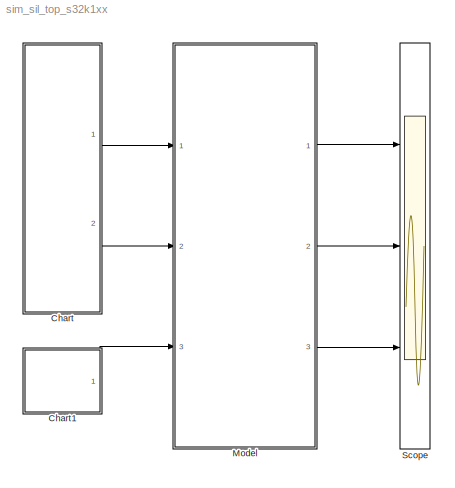
MODEL sim_sil_top_s32k1xx
KIND model
CONFIG InitFcn = mbd_s32k_consistency_checks(bdroot(gcs));
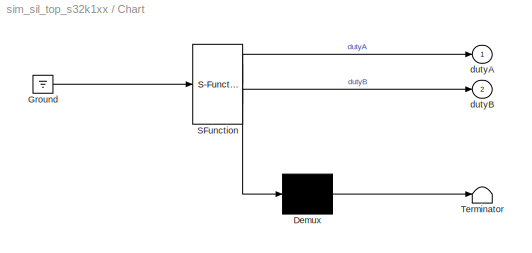
BLOCK [SubSystem] Chart
  ErrorFcn = Stateflow.Translate.translate
  PermitHierarchicalResolution = ExplicitOnly
  Ports = [0, 2]
  RequestExecContextInheritance = off
  SFBlockType = Chart
  SID = 1
  TreatAsAtomicUnit = on
  Variant = off
BLOCK [Demux] Chart/ Demux 
  Outputs = 1
  Ports = [1, 1]
  SID = 1::60
BLOCK [Ground] Chart/ Ground 
  SID = 1::62
BLOCK [S-Function] Chart/ SFunction 
  EnableBusSupport = on
  FunctionName = sf_sfun
  PortCounts = [1 3]
  Ports = [1, 3]
  SFcnIsStateOwnerBlock = off
  SFunctionDeploymentMode = off
  SID = 1::59
  Tag = Stateflow S-Function sim_sil_top_s32k1xx 3
BLOCK [Terminator] Chart/ Terminator 
  SID = 1::61
BLOCK [Outport] Chart/dutyA
  IconDisplay = Port number
  SID = 1::6
BLOCK [Outport] Chart/dutyB
  IconDisplay = Port number
  Port = 2
  SID = 1::7
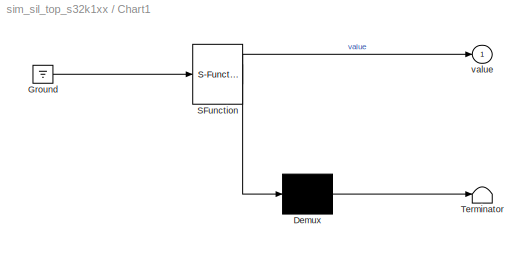
BLOCK [SubSystem] Chart1
  ErrorFcn = Stateflow.Translate.translate
  PermitHierarchicalResolution = ExplicitOnly
  Ports = [0, 1]
  RequestExecContextInheritance = off
  SFBlockType = Chart
  SID = 2
  TreatAsAtomicUnit = on
  Variant = off
BLOCK [Demux] Chart1/ Demux 
  Outputs = 1
  Ports = [1, 1]
  SID = 2::39
BLOCK [Ground] Chart1/ Ground 
  SID = 2::41
BLOCK [S-Function] Chart1/ SFunction 
  EnableBusSupport = on
  FunctionName = sf_sfun
  PortCounts = [1 2]
  Ports = [1, 2]
  SFcnIsStateOwnerBlock = off
  SFunctionDeploymentMode = off
  SID = 2::38
  Tag = Stateflow S-Function sim_sil_top_s32k1xx 5
BLOCK [Terminator] Chart1/ Terminator 
  SID = 2::40
BLOCK [Outport] Chart1/value
  IconDisplay = Port number
  SID = 2::5
BLOCK [ModelReference] Model
  ModelNameDialog = sim_sil_target_s32k1xx.mdl
  ModelReferenceVersion = 1.101
  Ports = [3, 3]
  SID = 5
  Variant = off
BLOCK [Scope] Scope
  NumInputPorts = 3
  Ports = [3]
  SID = 3
  ScopeSpecificationString = Simulink.scopes.TimeScopeBlockCfg('CurrentConfiguration', extmgr.ConfigurationSet(extmgr.Configuration('Core','General UI',true),extmgr.Configuration('Core','Source UI',true),extmgr.Configuration('Sources','WiredSimulink',true,'DataLoggingSaveFormat','StructureWithTime','DataLoggingLimitDataPoints',true,'DataLoggingDecimation','1','DataLoggingDecimateData',true),extmgr.Configuration('Visuals','Tim...<+3076ch>
LINE Chart/ Demux :1 -> Chart/ Terminator :1
LINE Chart/ Ground :1 -> Chart/ SFunction :1
LINE Chart/ SFunction :1 -> Chart/ Demux :1
LINE Chart/ SFunction :2 -> Chart/dutyA:1
LINE Chart/ SFunction :3 -> Chart/dutyB:1
LINE Chart1/ Demux :1 -> Chart1/ Terminator :1
LINE Chart1/ Ground :1 -> Chart1/ SFunction :1
LINE Chart1/ SFunction :1 -> Chart1/ Demux :1
LINE Chart1/ SFunction :2 -> Chart1/value:1
LINE Chart1:1 -> Model:3
LINE Chart:1 -> Model:1
LINE Chart:2 -> Model:2
LINE Model:1 -> Scope:1
LINE Model:2 -> Scope:2
LINE Model:3 -> Scope:3
CHART Chart states=2 transitions=3
  STATE_LABEL 'A\\ndu:\\ndutyA=0.75;\\ndutyB=0.15;\\ncntr=cntr+1;\\n'
  STATE_LABEL 'A1\\ndu:\\ndutyA=0.0;\\ndutyB=0.85;\\ncntr=cntr-1;\\n'
CHART Chart1 states=1 transitions=2
  STATE_LABEL 'A\\ndu:\\n cntr=cntr+100;\\n value=cntr;\\nex:\\n cntr = -32700;'
